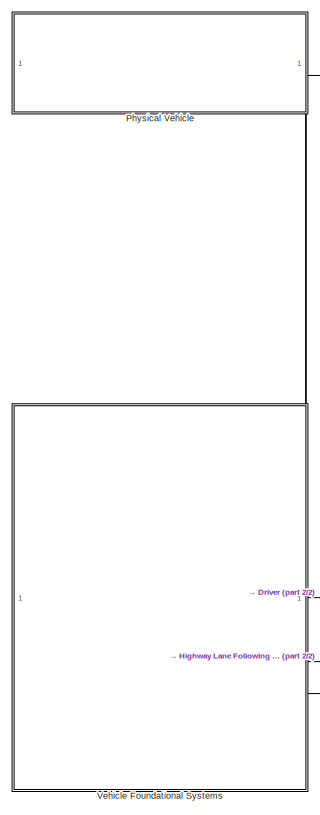
[diagram: root canvas - part 1/2, left side, full height]
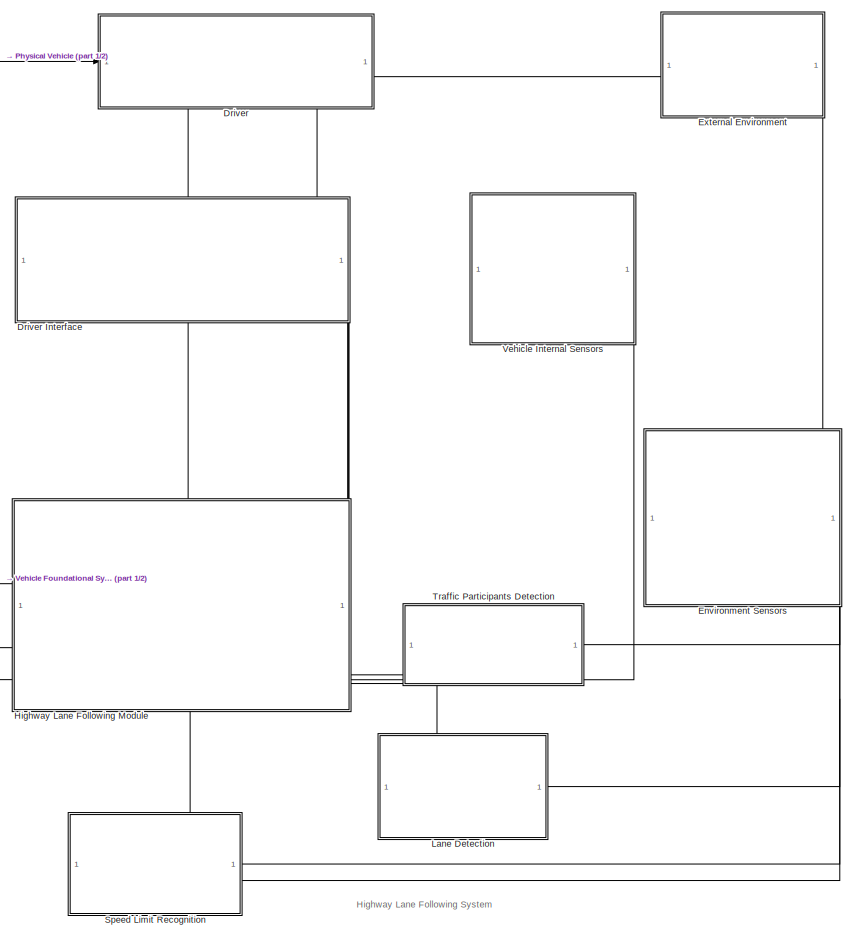
[diagram: root canvas - part 2/2, right side, full height]
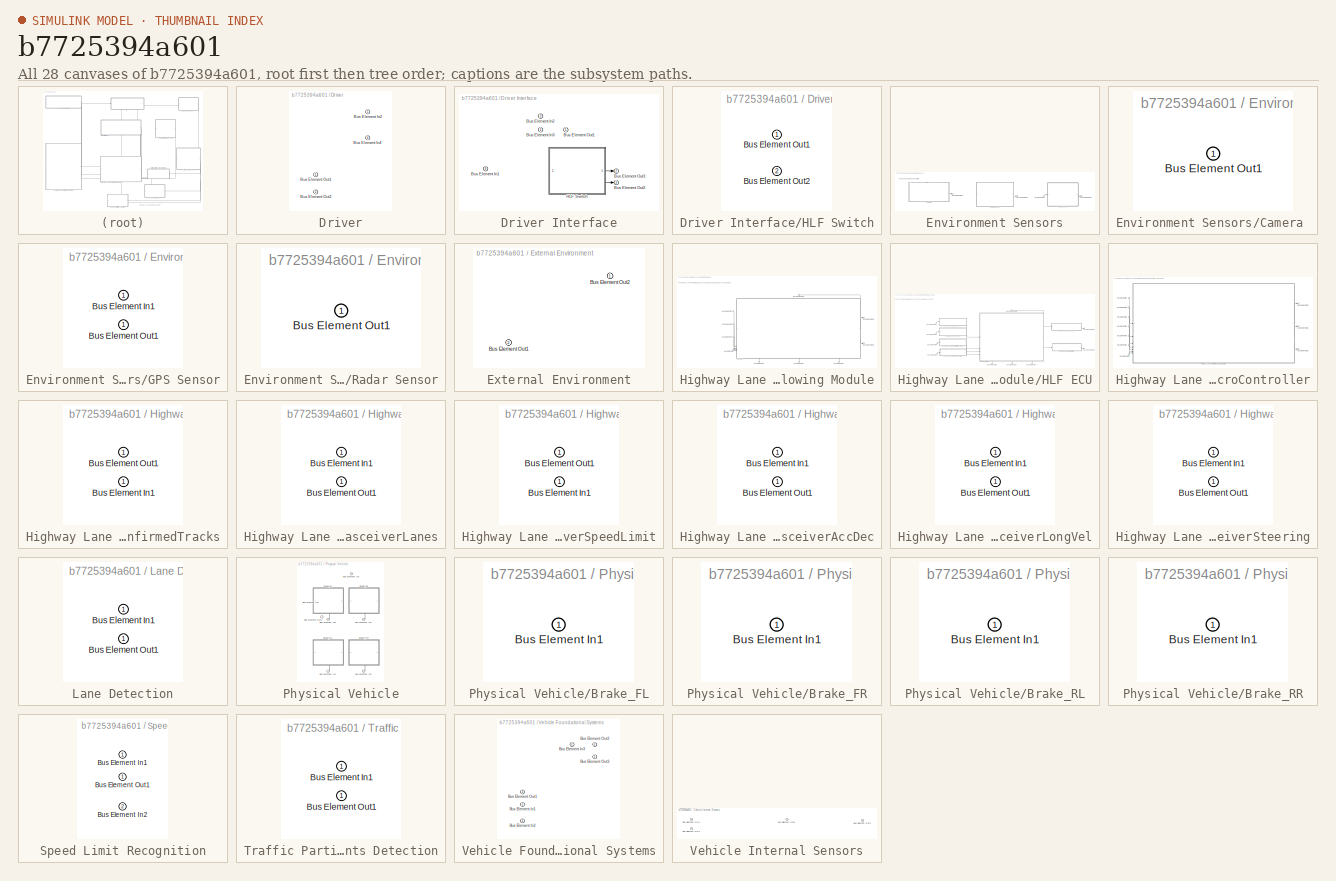
[diagram: thumbnail index - all 28 canvases of the model, root first then tree order]
MODEL slx_b7725394a601
KIND model
CONFIG AbsTol = auto
CONFIG EnableMultiTasking = off
CONFIG FixedStep = auto
CONFIG MaxStep = auto
CONFIG MinStep = auto
CONFIG RelTol = 1e-3
CONFIG SampleTimeConstraint = Unconstrained
CONFIG SolverName = VariableStepAuto
CONFIG StartTime = 0.0
CONFIG StopTime = 10.0
BLOCK [SubSystem] Driver
  PortSchema = {"entries":[{"content":{"headerSize":26,"margin":15,"minimumSpacing":25,"sides":[{"content":{"connectorIds":["In1","Out2"]},"type":"ConnectorPlacement.EquallySpacedRectSide","uuid":"57d9105b-5891-4b67-8053-94876359dbfc"},{"content":{"connectorIds":["In2"],"side":"RIGHT"},"type":"ConnectorPlacement.EquallySpacedRectSide","uuid":"3fd4430d-d88a-4c36-b7db-738c17ba6bd1"},{"content":{"connectorIds":[],"...<+588ch>
BLOCK [SubSystem] Driver Interface
  PortSchema = {"entries":[{"content":{"headerSize":26,"margin":15,"minimumSpacing":25,"sides":[{"content":{"connectorIds":["In3"]},"type":"ConnectorPlacement.EquallySpacedRectSide","uuid":"b5c560bf-b1de-4f7d-bfcc-f34083c77ac8"},{"content":{"connectorIds":[],"side":"RIGHT"},"type":"ConnectorPlacement.EquallySpacedRectSide","uuid":"ae8c8d4f-55e3-4192-b0d3-7950d45edb35"},{"content":{"connectorIds":["In2"],"side":"...<+601ch>
BLOCK [Inport] Driver Interface/Bus Element In1
  Port = 3
BLOCK [Inport] Driver Interface/Bus Element In2
  Port = 2
BLOCK [Inport] Driver Interface/Bus Element In3
BLOCK [Outport] Driver Interface/Bus Element Out1
BLOCK [Outport] Driver Interface/Bus Element Out2
  Port = 3
BLOCK [Outport] Driver Interface/Bus Element Out3
  Port = 2
BLOCK [SubSystem] Driver Interface/HLF Switch
  PortSchema = {"entries":[{"content":{"headerSize":26,"margin":15,"minimumSpacing":25,"sides":[{"content":{"connectorIds":[]},"type":"ConnectorPlacement.EquallySpacedRectSide","uuid":"b7f407b7-33e8-47f4-a6de-9d0843597b8d"},{"content":{"connectorIds":["Out1","Out2"],"side":"RIGHT"},"type":"ConnectorPlacement.EquallySpacedRectSide","uuid":"c67fba66-c883-4563-bb96-6929606b6eb1"},{"content":{"connectorIds":[],"side...<+290ch>
BLOCK [Outport] Driver Interface/HLF Switch/Bus Element Out1
BLOCK [Outport] Driver Interface/HLF Switch/Bus Element Out2
  Port = 2
BLOCK [Inport] Driver/Bus Element In2
BLOCK [Inport] Driver/Bus Element In4
  Port = 2
BLOCK [Outport] Driver/Bus Element Out1
BLOCK [Outport] Driver/Bus Element Out2
  Port = 2
BLOCK [SubSystem] Environment Sensors
  PortSchema = {"entries":[{"content":{"headerSize":26,"margin":15,"minimumSpacing":25,"sides":[{"content":{"connectorIds":[]},"type":"ConnectorPlacement.EquallySpacedRectSide","uuid":"57d9105b-5891-4b67-8053-94876359dbfc"},{"content":{"connectorIds":[],"side":"RIGHT"},"type":"ConnectorPlacement.EquallySpacedRectSide","uuid":"3fd4430d-d88a-4c36-b7db-738c17ba6bd1"},{"content":{"connectorIds":["In1"],"side":"TOP"}...<+590ch>
BLOCK [Inport] Environment Sensors/Bus Element In1
BLOCK [Outport] Environment Sensors/Bus Element Out1
BLOCK [Outport] Environment Sensors/Bus Element Out2
  Port = 2
BLOCK [Outport] Environment Sensors/Bus Element Out7
  Port = 3
BLOCK [SubSystem] Environment Sensors/Camera 
  PortSchema = {"entries":[{"content":{"headerSize":26,"margin":15,"minimumSpacing":25,"sides":[{"content":{"connectorIds":[]},"type":"ConnectorPlacement.EquallySpacedRectSide","uuid":"57d9105b-5891-4b67-8053-94876359dbfc"},{"content":{"connectorIds":["Out1"],"side":"RIGHT"},"type":"ConnectorPlacement.EquallySpacedRectSide","uuid":"3fd4430d-d88a-4c36-b7db-738c17ba6bd1"},{"content":{"connectorIds":[],"side":"TOP"...<+571ch>
BLOCK [Outport] Environment Sensors/Camera /Bus Element Out1
BLOCK [SubSystem] Environment Sensors/GPS Sensor
  PortSchema = {"entries":[{"content":{"headerSize":26,"margin":15,"minimumSpacing":25,"sides":[{"content":{"connectorIds":["In1"]},"type":"ConnectorPlacement.EquallySpacedRectSide","uuid":"b5c560bf-b1de-4f7d-bfcc-f34083c77ac8"},{"content":{"connectorIds":["Out1"],"side":"RIGHT"},"type":"ConnectorPlacement.EquallySpacedRectSide","uuid":"ae8c8d4f-55e3-4192-b0d3-7950d45edb35"},{"content":{"connectorIds":[],"side":...<+432ch>
BLOCK [Inport] Environment Sensors/GPS Sensor/Bus Element In1
BLOCK [Outport] Environment Sensors/GPS Sensor/Bus Element Out1
BLOCK [SubSystem] Environment Sensors/Radar Sensor
  PortSchema = {"entries":[{"content":{"headerSize":26,"margin":15,"minimumSpacing":25,"sides":[{"content":{"connectorIds":[]},"type":"ConnectorPlacement.EquallySpacedRectSide","uuid":"57d9105b-5891-4b67-8053-94876359dbfc"},{"content":{"connectorIds":["Out1"],"side":"RIGHT"},"type":"ConnectorPlacement.EquallySpacedRectSide","uuid":"3fd4430d-d88a-4c36-b7db-738c17ba6bd1"},{"content":{"connectorIds":[],"side":"TOP"...<+427ch>
BLOCK [Outport] Environment Sensors/Radar Sensor/Bus Element Out1
BLOCK [SubSystem] External Environment
  PortSchema = {"entries":[{"content":{"headerSize":26,"margin":15,"minimumSpacing":25,"sides":[{"content":{"connectorIds":["Out1"]},"type":"ConnectorPlacement.EquallySpacedRectSide","uuid":"57d9105b-5891-4b67-8053-94876359dbfc"},{"content":{"connectorIds":[],"side":"RIGHT"},"type":"ConnectorPlacement.EquallySpacedRectSide","uuid":"3fd4430d-d88a-4c36-b7db-738c17ba6bd1"},{"content":{"connectorIds":[],"side":"TOP"...<+577ch>
BLOCK [Outport] External Environment/Bus Element Out1
  Port = 2
BLOCK [Outport] External Environment/Bus Element Out2
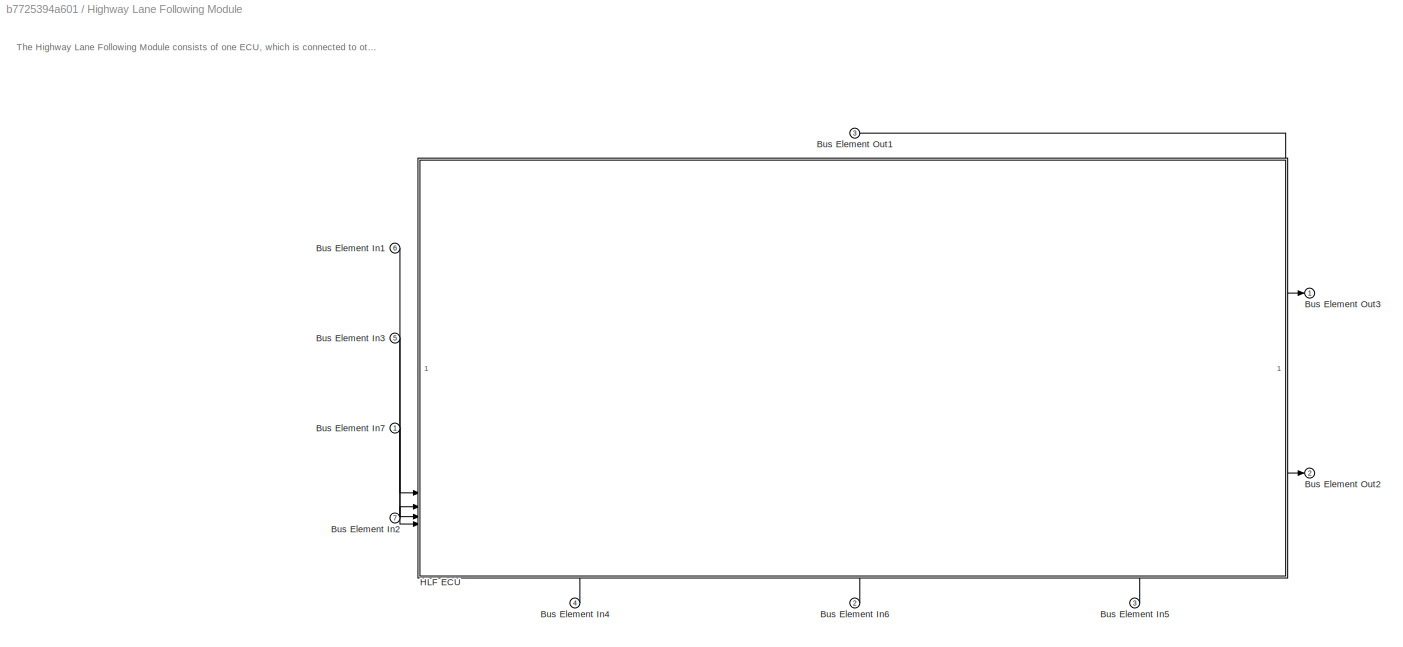
BLOCK [SubSystem] Highway Lane Following Module
  PortSchema = {"entries":[{"content":{"headerSize":26,"margin":15,"minimumSpacing":25,"sides":[{"content":{"connectorIds":["Out1","Out2"]},"type":"ConnectorPlacement.EquallySpacedRectSide","uuid":"5982ae23-38c5-467f-966f-0de5138e6d7a"},{"content":{"connectorIds":["In6","In7"],"side":"RIGHT"},"type":"ConnectorPlacement.EquallySpacedRectSide","uuid":"84362337-a9b7-4030-aff8-83ed548d578d"},{"content":{"connectorId...<+480ch>
BLOCK [Inport] Highway Lane Following Module/Bus Element In1
  Port = 6
BLOCK [Inport] Highway Lane Following Module/Bus Element In2
  Port = 7
BLOCK [Inport] Highway Lane Following Module/Bus Element In3
  Port = 5
BLOCK [Inport] Highway Lane Following Module/Bus Element In4
  Port = 4
BLOCK [Inport] Highway Lane Following Module/Bus Element In5
  Port = 3
BLOCK [Inport] Highway Lane Following Module/Bus Element In6
  Port = 2
BLOCK [Inport] Highway Lane Following Module/Bus Element In7
BLOCK [Outport] Highway Lane Following Module/Bus Element Out1
  Port = 3
BLOCK [Outport] Highway Lane Following Module/Bus Element Out2
  Port = 2
BLOCK [Outport] Highway Lane Following Module/Bus Element Out3
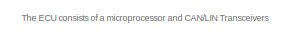
[diagram: Highway Lane Following Module/HLF ECU - part 1/2, top left region]
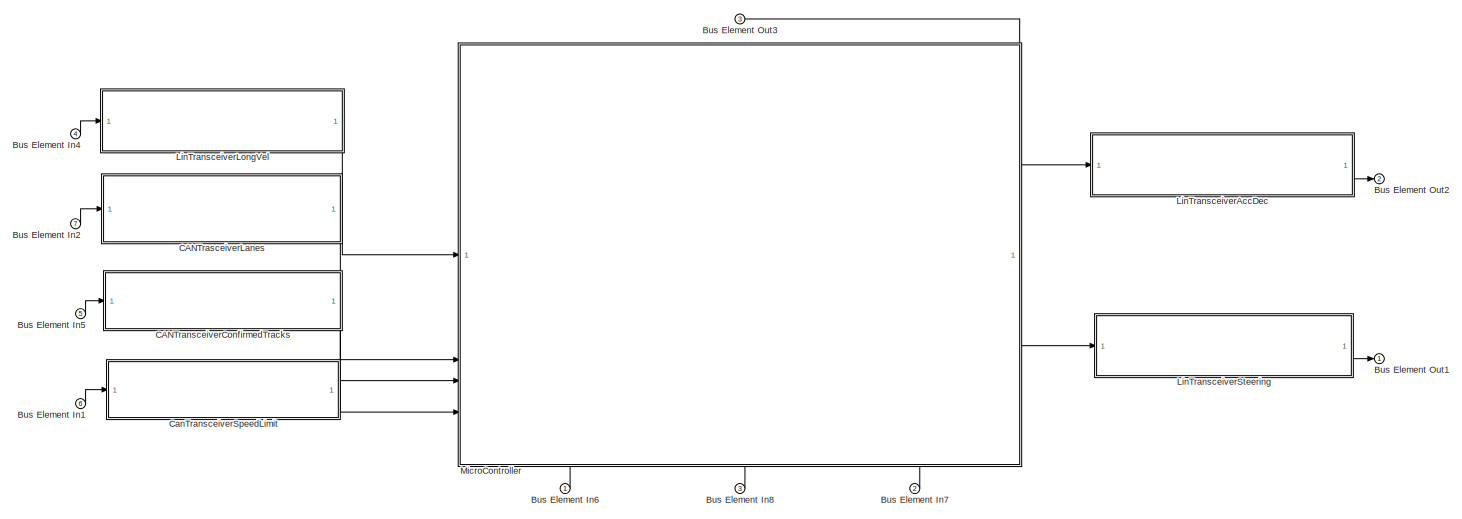
[diagram: Highway Lane Following Module/HLF ECU - part 2/2, most of the canvas]
BLOCK [SubSystem] Highway Lane Following Module/HLF ECU
  PortSchema = {"entries":[{"content":{"headerSize":26,"margin":15,"minimumSpacing":25,"sides":[{"content":{"connectorIds":["In4","In7","In6","In5"]},"type":"ConnectorPlacement.EquallySpacedRectSide","uuid":"5982ae23-38c5-467f-966f-0de5138e6d7a"},{"content":{"connectorIds":["Out1","Out2"],"side":"RIGHT"},"type":"ConnectorPlacement.EquallySpacedRectSide","uuid":"84362337-a9b7-4030-aff8-83ed548d578d"},{"content":{...<+480ch>
BLOCK [SubSystem] Highway Lane Following Module/HLF ECU/ MicroController
  PortSchema = {"entries":[{"content":{"headerSize":26,"margin":15,"minimumSpacing":25,"sides":[{"content":{"connectorIds":["In1","In7","In3","In4"]},"type":"ConnectorPlacement.EquallySpacedRectSide","uuid":"5982ae23-38c5-467f-966f-0de5138e6d7a"},{"content":{"connectorIds":["Out1","Out2"],"side":"RIGHT"},"type":"ConnectorPlacement.EquallySpacedRectSide","uuid":"84362337-a9b7-4030-aff8-83ed548d578d"},{"content":{...<+480ch>
BLOCK [Inport] Highway Lane Following Module/HLF ECU/ MicroController/Bus Element In1
  Port = 7
BLOCK [Inport] Highway Lane Following Module/HLF ECU/ MicroController/Bus Element In2
  Port = 5
BLOCK [Inport] Highway Lane Following Module/HLF ECU/ MicroController/Bus Element In3
  Port = 2
BLOCK [Inport] Highway Lane Following Module/HLF ECU/ MicroController/Bus Element In4
  Port = 6
BLOCK [Inport] Highway Lane Following Module/HLF ECU/ MicroController/Bus Element In5
  Port = 3
BLOCK [Inport] Highway Lane Following Module/HLF ECU/ MicroController/Bus Element In6
BLOCK [Inport] Highway Lane Following Module/HLF ECU/ MicroController/Bus Element In7
  Port = 4
BLOCK [Outport] Highway Lane Following Module/HLF ECU/ MicroController/Bus Element Out1
  Port = 3
BLOCK [Outport] Highway Lane Following Module/HLF ECU/ MicroController/Bus Element Out2
BLOCK [Outport] Highway Lane Following Module/HLF ECU/ MicroController/Bus Element Out3
  Port = 2
BLOCK [ModelReference] Highway Lane Following Module/HLF ECU/ MicroController/Highway Lane Following SW Architecture
  ModelNameDialog = HighwayLaneFollowingController_SW_Arch
  ModelReferenceVersion = 8.0
  PortSchema = {"entries":[{"content":{"headerSize":38,"margin":15,"minimumSpacing":25,"sides":[{"content":{"connectorIds":["In7","In1","In2","In3","In4","In5","In6"]},"type":"ConnectorPlacement.EquallySpacedRectSide","uuid":"a976da14-1036-413b-8707-75db1855bea5"},{"content":{"connectorIds":["Out1","Out2","Out3"],"side":"RIGHT"},"type":"ConnectorPlacement.EquallySpacedRectSide","uuid":"6cc185f9-955e-4f0e-a791-26...<+626ch>
BLOCK [Inport] Highway Lane Following Module/HLF ECU/Bus Element In1
  Port = 6
BLOCK [Inport] Highway Lane Following Module/HLF ECU/Bus Element In2
  Port = 7
BLOCK [Inport] Highway Lane Following Module/HLF ECU/Bus Element In4
  Port = 4
BLOCK [Inport] Highway Lane Following Module/HLF ECU/Bus Element In5
  Port = 5
BLOCK [Inport] Highway Lane Following Module/HLF ECU/Bus Element In6
BLOCK [Inport] Highway Lane Following Module/HLF ECU/Bus Element In7
  Port = 2
BLOCK [Inport] Highway Lane Following Module/HLF ECU/Bus Element In8
  Port = 3
BLOCK [Outport] Highway Lane Following Module/HLF ECU/Bus Element Out1
BLOCK [Outport] Highway Lane Following Module/HLF ECU/Bus Element Out2
  Port = 2
BLOCK [Outport] Highway Lane Following Module/HLF ECU/Bus Element Out3
  Port = 3
BLOCK [SubSystem] Highway Lane Following Module/HLF ECU/CANTransceiverConfirmedTracks
  PortSchema = {"entries":[{"content":{"headerSize":26,"margin":15,"minimumSpacing":25,"sides":[{"content":{"connectorIds":["In1"]},"type":"ConnectorPlacement.EquallySpacedRectSide","uuid":"5982ae23-38c5-467f-966f-0de5138e6d7a"},{"content":{"connectorIds":["Out1"],"side":"RIGHT"},"type":"ConnectorPlacement.EquallySpacedRectSide","uuid":"84362337-a9b7-4030-aff8-83ed548d578d"},{"content":{"connectorIds":[],"side":...<+288ch>  <repeated x6 — deduplicated; at blocks: CANTransceiverConfirmedTracks, CANTrasceiverLanes, CanTransceiverSpeedLimit, LinTransceiverAccDec, LinTransceiverLongVel, LinTransceiverSteering>
BLOCK [Inport] Highway Lane Following Module/HLF ECU/CANTransceiverConfirmedTracks/Bus Element In1
BLOCK [Outport] Highway Lane Following Module/HLF ECU/CANTransceiverConfirmedTracks/Bus Element Out1
BLOCK [SubSystem] Highway Lane Following Module/HLF ECU/CANTrasceiverLanes
BLOCK [Inport] Highway Lane Following Module/HLF ECU/CANTrasceiverLanes/Bus Element In1
BLOCK [Outport] Highway Lane Following Module/HLF ECU/CANTrasceiverLanes/Bus Element Out1
BLOCK [SubSystem] Highway Lane Following Module/HLF ECU/CanTransceiverSpeedLimit
BLOCK [Inport] Highway Lane Following Module/HLF ECU/CanTransceiverSpeedLimit/Bus Element In1
BLOCK [Outport] Highway Lane Following Module/HLF ECU/CanTransceiverSpeedLimit/Bus Element Out1
BLOCK [SubSystem] Highway Lane Following Module/HLF ECU/LinTransceiverAccDec
BLOCK [Inport] Highway Lane Following Module/HLF ECU/LinTransceiverAccDec/Bus Element In1
BLOCK [Outport] Highway Lane Following Module/HLF ECU/LinTransceiverAccDec/Bus Element Out1
BLOCK [SubSystem] Highway Lane Following Module/HLF ECU/LinTransceiverLongVel
BLOCK [Inport] Highway Lane Following Module/HLF ECU/LinTransceiverLongVel/Bus Element In1
BLOCK [Outport] Highway Lane Following Module/HLF ECU/LinTransceiverLongVel/Bus Element Out1
BLOCK [SubSystem] Highway Lane Following Module/HLF ECU/LinTransceiverSteering
BLOCK [Inport] Highway Lane Following Module/HLF ECU/LinTransceiverSteering/Bus Element In1
BLOCK [Outport] Highway Lane Following Module/HLF ECU/LinTransceiverSteering/Bus Element Out1
BLOCK [SubSystem] Lane Detection
  PortSchema = {"entries":[{"content":{"headerSize":26,"margin":15,"minimumSpacing":25,"sides":[{"content":{"connectorIds":["Out1"]},"type":"ConnectorPlacement.EquallySpacedRectSide","uuid":"b5c560bf-b1de-4f7d-bfcc-f34083c77ac8"},{"content":{"connectorIds":["In1"],"side":"RIGHT"},"type":"ConnectorPlacement.EquallySpacedRectSide","uuid":"ae8c8d4f-55e3-4192-b0d3-7950d45edb35"},{"content":{"connectorIds":[],"side":...<+432ch>
BLOCK [Inport] Lane Detection/Bus Element In1
BLOCK [Outport] Lane Detection/Bus Element Out1
BLOCK [SubSystem] Physical Vehicle
  PortSchema = {"entries":[{"content":{"headerSize":26,"margin":15,"minimumSpacing":25,"sides":[{"content":{"connectorIds":[]},"type":"ConnectorPlacement.EquallySpacedRectSide","uuid":"57d9105b-5891-4b67-8053-94876359dbfc"},{"content":{"connectorIds":["Out1"],"side":"RIGHT"},"type":"ConnectorPlacement.EquallySpacedRectSide","uuid":"3fd4430d-d88a-4c36-b7db-738c17ba6bd1"},{"content":{"connectorIds":[],"side":"TOP"...<+588ch>
BLOCK [SubSystem] Physical Vehicle/Brake_FL
  PortSchema = {"entries":[{"content":{"headerSize":26,"margin":15,"minimumSpacing":25,"sides":[{"content":{"connectorIds":[]},"type":"ConnectorPlacement.EquallySpacedRectSide","uuid":"b7f407b7-33e8-47f4-a6de-9d0843597b8d"},{"content":{"connectorIds":[],"side":"RIGHT"},"type":"ConnectorPlacement.EquallySpacedRectSide","uuid":"c67fba66-c883-4563-bb96-6929606b6eb1"},{"content":{"connectorIds":[],"side":"TOP"},"typ...<+426ch>  <repeated x4 — deduplicated; at blocks: Brake_FL, Brake_FR, Brake_RL, Brake_RR>
BLOCK [Inport] Physical Vehicle/Brake_FL/Bus Element In1
BLOCK [SubSystem] Physical Vehicle/Brake_FR
BLOCK [Inport] Physical Vehicle/Brake_FR/Bus Element In1
BLOCK [SubSystem] Physical Vehicle/Brake_RL
BLOCK [Inport] Physical Vehicle/Brake_RL/Bus Element In1
BLOCK [SubSystem] Physical Vehicle/Brake_RR
BLOCK [Inport] Physical Vehicle/Brake_RR/Bus Element In1
BLOCK [Inport] Physical Vehicle/Bus Element In1
  Port = 3
BLOCK [Inport] Physical Vehicle/Bus Element In2
  Port = 2
BLOCK [Inport] Physical Vehicle/Bus Element In3
BLOCK [Inport] Physical Vehicle/Bus Element In4
BLOCK [Inport] Physical Vehicle/Bus Element In5
BLOCK [Inport] Physical Vehicle/Bus Element In6
BLOCK [Outport] Physical Vehicle/Bus Element Out1
BLOCK [SubSystem] Speed Limit Recognition
  PortSchema = {"entries":[{"content":{"headerSize":26,"margin":15,"minimumSpacing":25,"sides":[{"content":{"connectorIds":[]},"type":"ConnectorPlacement.EquallySpacedRectSide","uuid":"b5c560bf-b1de-4f7d-bfcc-f34083c77ac8"},{"content":{"connectorIds":["In1","In2"],"side":"RIGHT"},"type":"ConnectorPlacement.EquallySpacedRectSide","uuid":"ae8c8d4f-55e3-4192-b0d3-7950d45edb35"},{"content":{"connectorIds":["Out1"],"...<+438ch>
BLOCK [Inport] Speed Limit Recognition/Bus Element In1
BLOCK [Inport] Speed Limit Recognition/Bus Element In2
  Port = 2
BLOCK [Outport] Speed Limit Recognition/Bus Element Out1
BLOCK [SubSystem] Traffic Participants Detection
  PortSchema = {"entries":[{"content":{"headerSize":26,"margin":15,"minimumSpacing":25,"sides":[{"content":{"connectorIds":["Out1"]},"type":"ConnectorPlacement.EquallySpacedRectSide","uuid":"b5c560bf-b1de-4f7d-bfcc-f34083c77ac8"},{"content":{"connectorIds":["In1"],"side":"RIGHT"},"type":"ConnectorPlacement.EquallySpacedRectSide","uuid":"ae8c8d4f-55e3-4192-b0d3-7950d45edb35"},{"content":{"connectorIds":[],"side":...<+432ch>
BLOCK [Inport] Traffic Participants Detection/Bus Element In1
BLOCK [Outport] Traffic Participants Detection/Bus Element Out1
BLOCK [SubSystem] Vehicle Foundational Systems
  PortSchema = {"entries":[{"content":{"headerSize":26,"margin":15,"minimumSpacing":25,"sides":[{"content":{"connectorIds":[]},"type":"ConnectorPlacement.EquallySpacedRectSide","uuid":"b5c560bf-b1de-4f7d-bfcc-f34083c77ac8"},{"content":{"connectorIds":["In1","In2","In3"],"side":"RIGHT"},"type":"ConnectorPlacement.EquallySpacedRectSide","uuid":"ae8c8d4f-55e3-4192-b0d3-7950d45edb35"},{"content":{"connectorIds":["Ou...<+458ch>
BLOCK [Inport] Vehicle Foundational Systems/Bus Element In1
  Port = 2
BLOCK [Inport] Vehicle Foundational Systems/Bus Element In2
  Port = 3
BLOCK [Inport] Vehicle Foundational Systems/Bus Element In3
BLOCK [Outport] Vehicle Foundational Systems/Bus Element Out1
  Port = 3
BLOCK [Outport] Vehicle Foundational Systems/Bus Element Out2
  Port = 2
BLOCK [Outport] Vehicle Foundational Systems/Bus Element Out3
BLOCK [SubSystem] Vehicle Internal Sensors
  PortSchema = {"entries":[{"content":{"headerSize":26,"margin":15,"minimumSpacing":25,"sides":[{"content":{"connectorIds":["Out1","Out2","Out3"]},"type":"ConnectorPlacement.EquallySpacedRectSide","uuid":"57d9105b-5891-4b67-8053-94876359dbfc"},{"content":{"connectorIds":[],"side":"RIGHT"},"type":"ConnectorPlacement.EquallySpacedRectSide","uuid":"3fd4430d-d88a-4c36-b7db-738c17ba6bd1"},{"content":{"connectorIds":[...<+591ch>
BLOCK [Outport] Vehicle Internal Sensors/Bus Element Out1
  Port = 3
BLOCK [Outport] Vehicle Internal Sensors/Bus Element Out2
BLOCK [Outport] Vehicle Internal Sensors/Bus Element Out3
  Port = 2
BLOCK [Outport] Vehicle Internal Sensors/Bus Element Out4
  Port = 4
ANNOTATION (root): Highway Lane Following System
ANNOTATION Environment Sensors: Mounted behind the rear-view mirror
ANNOTATION Highway Lane Following Module: The Highway Lane Following Module consists of one ECU, which is connected to other modules with LIN and CAN system buses.
ANNOTATION Highway Lane Following Module/HLF ECU: The ECU consists of a microprocessor and CAN/LIN Transceivers
LINE Driver Interface/HLF Switch:1 -> Driver Interface/Bus Element Out3:1
LINE Driver Interface/HLF Switch:2 -> Driver Interface/Bus Element Out2:1
LINE Driver Interface:1 -> Highway Lane Following Module:2
LINE Driver Interface:2 -> Highway Lane Following Module:3
LINE Driver Interface:3 -> Highway Lane Following Module:4
LINE Driver:1 -> Driver Interface:2
NET Driver:2 -> Driver Interface:3, Vehicle Foundational Systems:1
LINE Environment Sensors/Bus Element In1:1 -> Environment Sensors/GPS Sensor:1
LINE Environment Sensors/Camera :1 -> Environment Sensors/Bus Element Out1:1
LINE Environment Sensors/GPS Sensor:1 -> Environment Sensors/Bus Element Out7:1
LINE Environment Sensors/Radar Sensor:1 -> Environment Sensors/Bus Element Out2:1
NET Environment Sensors:1 -> Lane Detection:1, Speed Limit Recognition:1
LINE Environment Sensors:2 -> Traffic Participants Detection:1
LINE Environment Sensors:3 -> Speed Limit Recognition:2
LINE External Environment:1 -> Driver:2
LINE External Environment:2 -> Environment Sensors:1
LINE Highway Lane Following Module/Bus Element In1:1 -> Highway Lane Following Module/HLF ECU:4
LINE Highway Lane Following Module/Bus Element In2:1 -> Highway Lane Following Module/HLF ECU:5
LINE Highway Lane Following Module/Bus Element In3:1 -> Highway Lane Following Module/HLF ECU:7
LINE Highway Lane Following Module/Bus Element In4:1 -> Highway Lane Following Module/HLF ECU:2
LINE Highway Lane Following Module/Bus Element In5:1 -> Highway Lane Following Module/HLF ECU:1
LINE Highway Lane Following Module/Bus Element In6:1 -> Highway Lane Following Module/HLF ECU:3
LINE Highway Lane Following Module/Bus Element In7:1 -> Highway Lane Following Module/HLF ECU:6
LINE Highway Lane Following Module/HLF ECU/ MicroController/Bus Element In1:1 -> Highway Lane Following Module/HLF ECU/ MicroController/Highway Lane Following SW Architecture:7
LINE Highway Lane Following Module/HLF ECU/ MicroController/Bus Element In2:1 -> Highway Lane Following Module/HLF ECU/ MicroController/Highway Lane Following SW Architecture:6
LINE Highway Lane Following Module/HLF ECU/ MicroController/Bus Element In3:1 -> Highway Lane Following Module/HLF ECU/ MicroController/Highway Lane Following SW Architecture:4
LINE Highway Lane Following Module/HLF ECU/ MicroController/Bus Element In4:1 -> Highway Lane Following Module/HLF ECU/ MicroController/Highway Lane Following SW Architecture:3
LINE Highway Lane Following Module/HLF ECU/ MicroController/Bus Element In5:1 -> Highway Lane Following Module/HLF ECU/ MicroController/Highway Lane Following SW Architecture:1
LINE Highway Lane Following Module/HLF ECU/ MicroController/Bus Element In6:1 -> Highway Lane Following Module/HLF ECU/ MicroController/Highway Lane Following SW Architecture:2
LINE Highway Lane Following Module/HLF ECU/ MicroController/Bus Element In7:1 -> Highway Lane Following Module/HLF ECU/ MicroController/Highway Lane Following SW Architecture:5
LINE Highway Lane Following Module/HLF ECU/ MicroController/Highway Lane Following SW Architecture:1 -> Highway Lane Following Module/HLF ECU/ MicroController/Bus Element Out2:1
LINE Highway Lane Following Module/HLF ECU/ MicroController/Highway Lane Following SW Architecture:2 -> Highway Lane Following Module/HLF ECU/ MicroController/Bus Element Out3:1
LINE Highway Lane Following Module/HLF ECU/ MicroController/Highway Lane Following SW Architecture:3 -> Highway Lane Following Module/HLF ECU/ MicroController/Bus Element Out1:1
LINE Highway Lane Following Module/HLF ECU/ MicroController:1 -> Highway Lane Following Module/HLF ECU/LinTransceiverAccDec:1
LINE Highway Lane Following Module/HLF ECU/ MicroController:2 -> Highway Lane Following Module/HLF ECU/LinTransceiverSteering:1
LINE Highway Lane Following Module/HLF ECU/ MicroController:3 -> Highway Lane Following Module/HLF ECU/Bus Element Out3:1
LINE Highway Lane Following Module/HLF ECU/Bus Element In1:1 -> Highway Lane Following Module/HLF ECU/CanTransceiverSpeedLimit:1
LINE Highway Lane Following Module/HLF ECU/Bus Element In2:1 -> Highway Lane Following Module/HLF ECU/CANTrasceiverLanes:1
LINE Highway Lane Following Module/HLF ECU/Bus Element In4:1 -> Highway Lane Following Module/HLF ECU/LinTransceiverLongVel:1
LINE Highway Lane Following Module/HLF ECU/Bus Element In5:1 -> Highway Lane Following Module/HLF ECU/CANTransceiverConfirmedTracks:1
LINE Highway Lane Following Module/HLF ECU/Bus Element In6:1 -> Highway Lane Following Module/HLF ECU/ MicroController:5
LINE Highway Lane Following Module/HLF ECU/Bus Element In7:1 -> Highway Lane Following Module/HLF ECU/ MicroController:2
LINE Highway Lane Following Module/HLF ECU/Bus Element In8:1 -> Highway Lane Following Module/HLF ECU/ MicroController:6
LINE Highway Lane Following Module/HLF ECU/CANTransceiverConfirmedTracks:1 -> Highway Lane Following Module/HLF ECU/ MicroController:3
LINE Highway Lane Following Module/HLF ECU/CANTrasceiverLanes:1 -> Highway Lane Following Module/HLF ECU/ MicroController:7
LINE Highway Lane Following Module/HLF ECU/CanTransceiverSpeedLimit:1 -> Highway Lane Following Module/HLF ECU/ MicroController:4
LINE Highway Lane Following Module/HLF ECU/LinTransceiverAccDec:1 -> Highway Lane Following Module/HLF ECU/Bus Element Out2:1
LINE Highway Lane Following Module/HLF ECU/LinTransceiverLongVel:1 -> Highway Lane Following Module/HLF ECU/ MicroController:1
LINE Highway Lane Following Module/HLF ECU/LinTransceiverSteering:1 -> Highway Lane Following Module/HLF ECU/Bus Element Out1:1
LINE Highway Lane Following Module/HLF ECU:1 -> Highway Lane Following Module/Bus Element Out3:1
LINE Highway Lane Following Module/HLF ECU:2 -> Highway Lane Following Module/Bus Element Out2:1
LINE Highway Lane Following Module/HLF ECU:3 -> Highway Lane Following Module/Bus Element Out1:1
LINE Highway Lane Following Module:1 -> Vehicle Foundational Systems:2
LINE Highway Lane Following Module:2 -> Vehicle Foundational Systems:3
LINE Highway Lane Following Module:3 -> Driver Interface:1
LINE Lane Detection:1 -> Highway Lane Following Module:5
LINE Physical Vehicle/Bus Element In3:1 -> Physical Vehicle/Brake_RR:1
LINE Physical Vehicle/Bus Element In4:1 -> Physical Vehicle/Brake_RL:1
LINE Physical Vehicle/Bus Element In5:1 -> Physical Vehicle/Brake_FR:1
LINE Physical Vehicle/Bus Element In6:1 -> Physical Vehicle/Brake_FL:1
LINE Physical Vehicle:1 -> Driver:1
LINE Speed Limit Recognition:1 -> Highway Lane Following Module:1
LINE Traffic Participants Detection:1 -> Highway Lane Following Module:7
LINE Vehicle Foundational Systems:1 -> Physical Vehicle:1
LINE Vehicle Foundational Systems:2 -> Physical Vehicle:2
LINE Vehicle Foundational Systems:3 -> Physical Vehicle:3
LINE Vehicle Internal Sensors:4 -> Highway Lane Following Module:6
note: NET lines group one-source signal fan-out (src -> all destinations, sorted); 1:1 wires keep LINE
